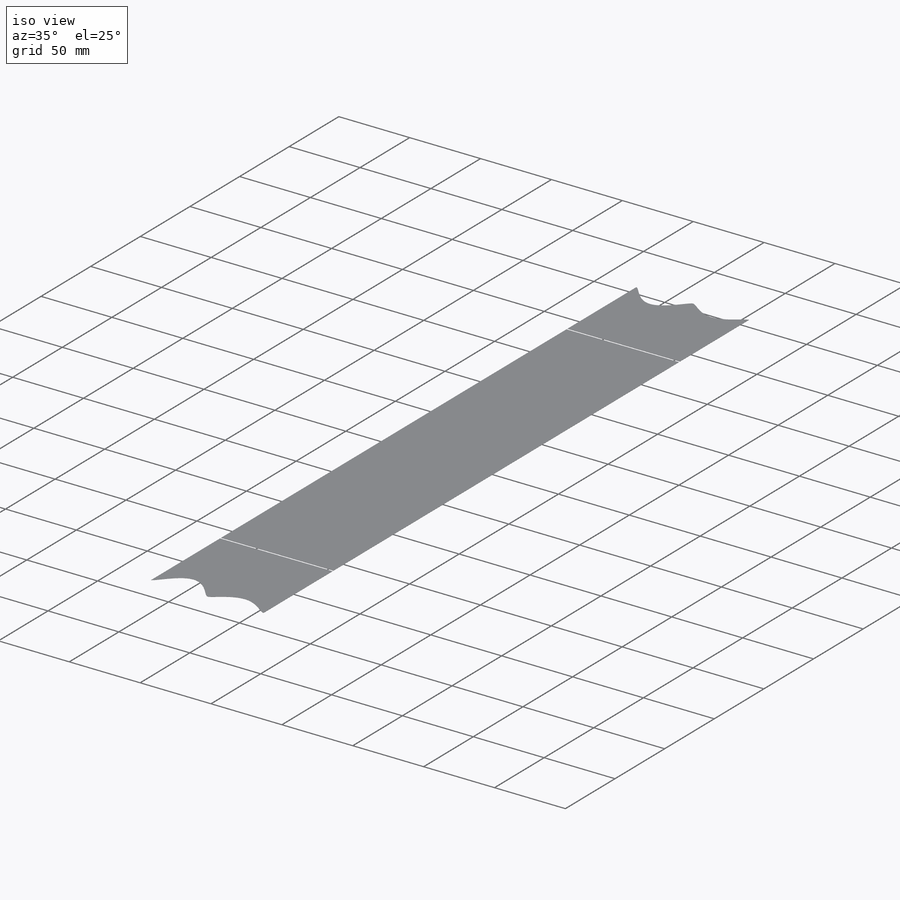
[diagram: iso view]
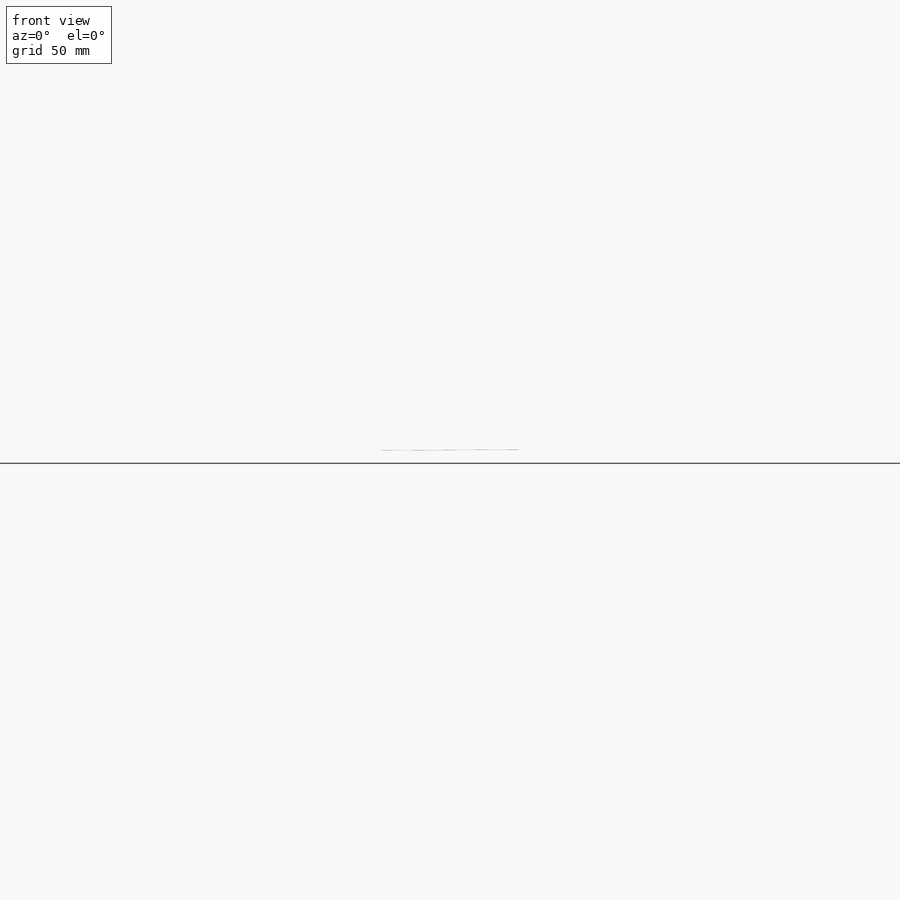
[diagram: front view]
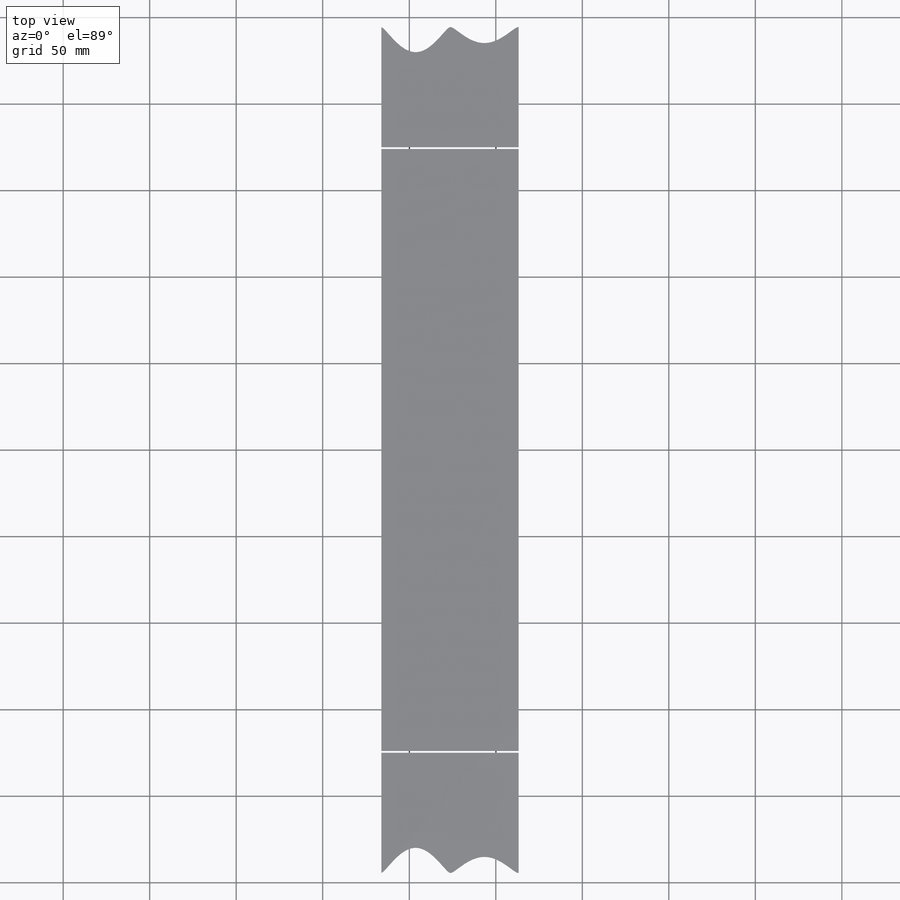
[diagram: top view]
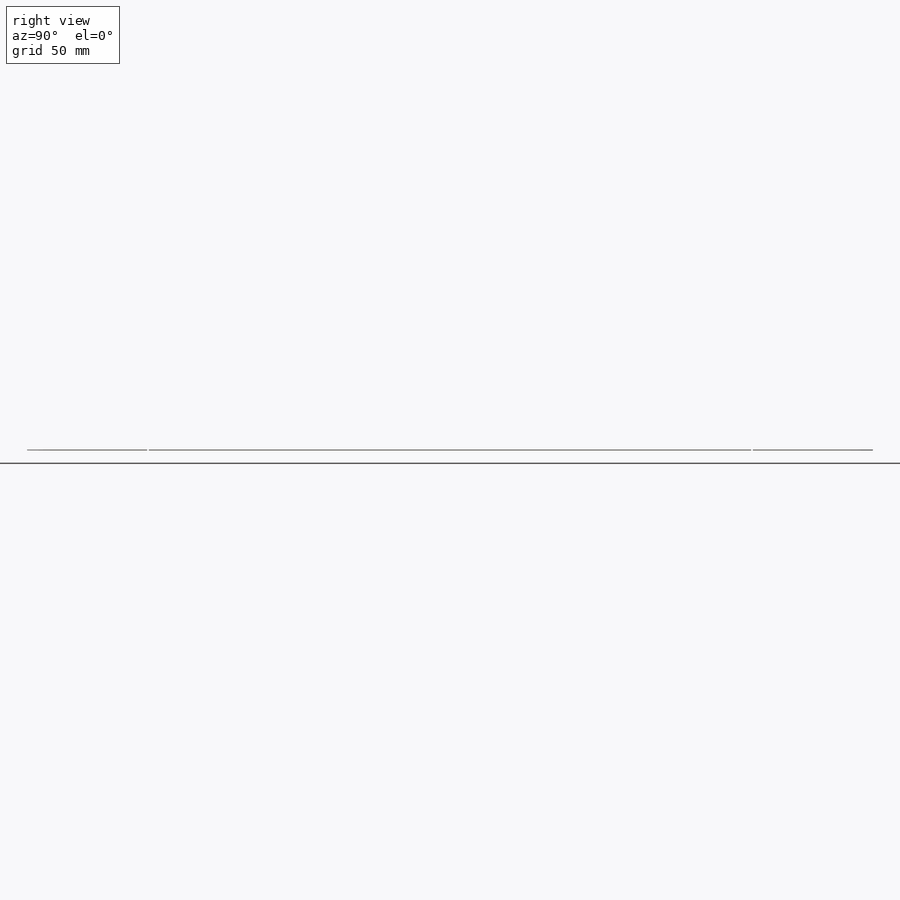
[diagram: right view]
SOLIDWORKS PART (.sldprt)
format: sldprt  version: not decoded by parser v0  size: 6,365,696 bytes
history: native  units: mm
features: sketch x14, sheet_metal_op x4, cut_extrude x2, material x1 + 5 further entries (+11 scaffold rows collapsed)
feature tree (37):
  scaffold x11  (default folders/planes/origin — collapsed)
  material  "AISI 1020 Steel, Cold Rolled"
  "Stock-Frame-2"
  sheet_metal_op  "Sheet-Metal3"
  sheet_metal_op  "Sheet-Metal5"  Thickness=0.1mm
  sketch  "Sharp-Sketch3"  dims[D1=0.0mm]
  sketch  "Flat-Sketch3"  dims[D1=0.0mm]
  sheet_metal_op  "Sheet-Metal4"  RoundBend4=0
  sheet_metal_op  "Sheet-Metal6"
  sketch  "Sharp-Sketch4"  dims[D1=0.0mm]
  sketch  "Flat-Sketch4"  dims[D1=0.0mm]
  sketch  "Sketch21"  dims[D1=1.0mm D2=350.0mm D3=175.0mm]
  cut_extrude  "Cut-Extrude2"  Depth=10mm
  sketch  "Sketch25"
  cut_extrude  "Cut-Extrude3"  Depth=10mm
  "Flat-Pattern3"
  sketch  "Bend-Lines3"
  sketch  "Bounding-Box3"
  "Flat-Pattern4"
  sketch  "Bend-Lines4"
  sketch  "Bounding-Box4"
  "Flat-Pattern5"
  sketch  "Bend-Lines5"
  sketch  "Bounding-Box5"
  "Flat-Pattern6"
  sketch  "Bend-Lines6"
  sketch  "Bounding-Box6"
decode coverage: 9 of 20 modeling features carry decoded parameters; 5 rows unclassified (native names shown)
note: suppression state not decoded; provenance and decode notes live in map.json
